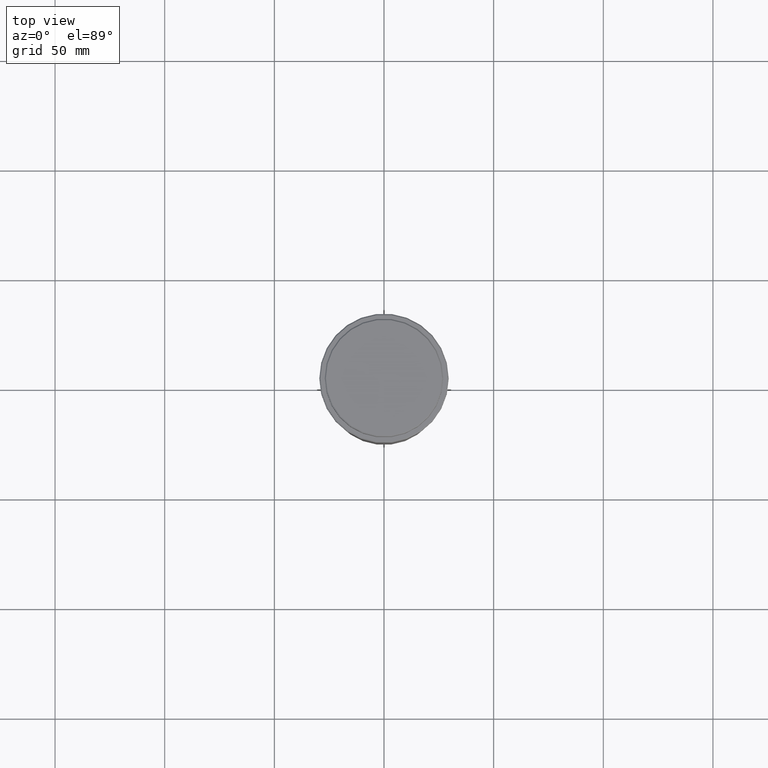
[diagram: clean part render]
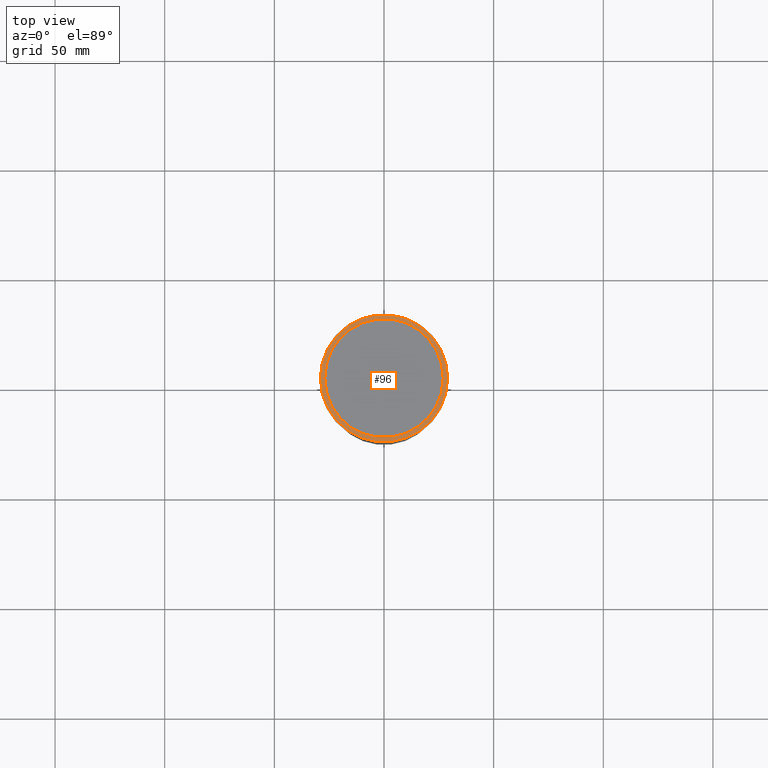
[diagram: same view with one face highlighted and labeled with its STEP entity id]
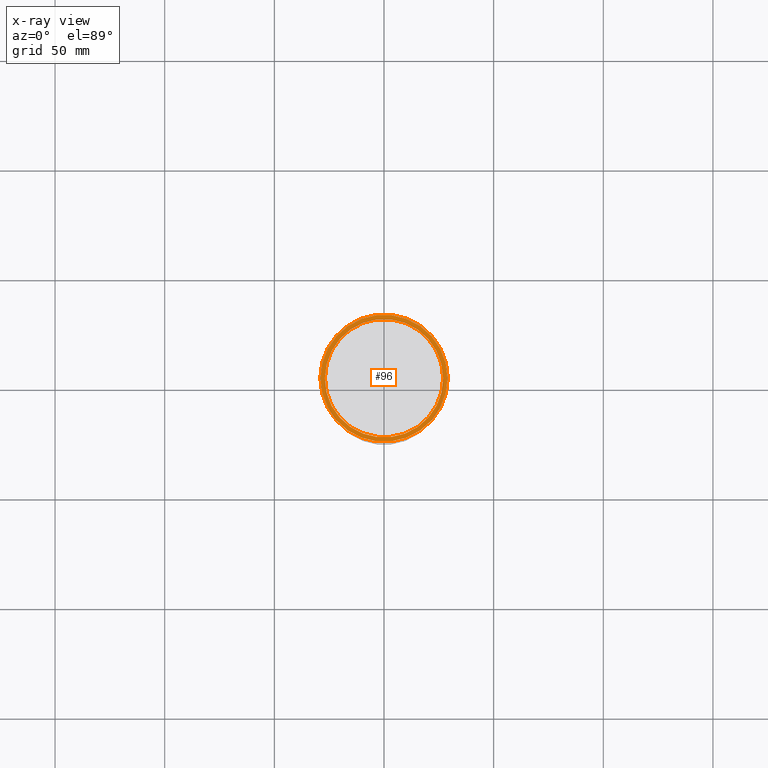
[diagram: x-ray of the same camera — body ghosted, the highlighted face saturated]
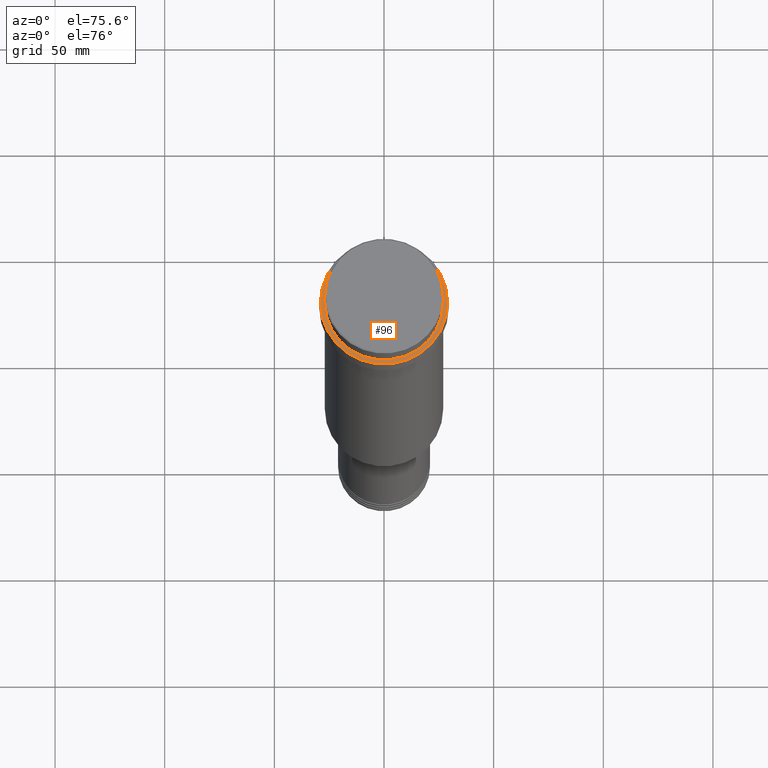
[diagram: same view with one face highlighted and labeled with its STEP entity id]
A machine part, top view. The second image highlights one B-rep face of the part: STEP entity #96.
The next image is the same camera in x-ray: the body ghosted, the highlighted face saturated — about 0% of this face is hidden behind the body in this view.
A second angle (auxiliary view) of the same face is appended — the face is thin or edge-on in the first view.
In plain terms, the highlighted planar face has unit normal (0, -0, 1).
Its self-contained STEP definition (entity closure, byte-faithful):
#52 = CARTESIAN_POINT ( 'NONE',  ( 0.000000000000000000, 0.000000000000000000, -12.00000000000000355 ) ) ;
#54 = DIRECTION ( 'NONE',  ( 1.000000000000000000, 0.000000000000000000, 0.000000000000000000 ) ) ;
#96 = ADVANCED_FACE ( 'NONE', ( #1147, #1025 ), #721, .T. ) ;
#134 = CARTESIAN_POINT ( 'NONE',  ( -26.99999999999999645, 3.306546357697853339E-15, -12.00000000000000355 ) ) ;
#156 = CIRCLE ( 'NONE', #1161, 28.99999999999991473 ) ;
#167 = CIRCLE ( 'NONE', #319, 26.99999999999999645 ) ;
#176 = DIRECTION ( 'NONE',  ( 0.000000000000000000, 0.000000000000000000, -1.000000000000000000 ) ) ;
#181 = CARTESIAN_POINT ( 'NONE',  ( 0.000000000000000000, 0.000000000000000000, -12.00000000000000355 ) ) ;
#192 = DIRECTION ( 'NONE',  ( 0.000000000000000000, 0.000000000000000000, -1.000000000000000000 ) ) ;
#275 = VERTEX_POINT ( 'NONE', #1168 ) ;
#283 = CARTESIAN_POINT ( 'NONE',  ( -28.99999999999991473, 0.000000000000000000, -12.00000000000000355 ) ) ;
#290 = CIRCLE ( 'NONE', #901, 28.99999999999991473 ) ;
#319 = AXIS2_PLACEMENT_3D ( 'NONE', #52, #176, #609 ) ;
#359 = VERTEX_POINT ( 'NONE', #134 ) ;
#510 = EDGE_CURVE ( 'NONE', #781, #359, #167, .T. ) ;
#585 = CARTESIAN_POINT ( 'NONE',  ( 0.000000000000000000, 0.000000000000000000, -12.00000000000000355 ) ) ;
#609 = DIRECTION ( 'NONE',  ( 1.000000000000000000, 0.000000000000000000, 0.000000000000000000 ) ) ;
#613 = DIRECTION ( 'NONE',  ( 1.000000000000000000, 0.000000000000000000, 0.000000000000000000 ) ) ;
#675 = CARTESIAN_POINT ( 'NONE',  ( 0.000000000000000000, 0.000000000000000000, -12.00000000000000355 ) ) ;
#721 = PLANE ( 'NONE',  #1256 ) ;
#742 = EDGE_LOOP ( 'NONE', ( #874, #990 ) ) ;
#781 = VERTEX_POINT ( 'NONE', #1406 ) ;
#823 = DIRECTION ( 'NONE',  ( 0.000000000000000000, -0.000000000000000000, 1.000000000000000000 ) ) ;
#856 = EDGE_CURVE ( 'NONE', #1228, #275, #156, .T. ) ;
#868 = ORIENTED_EDGE ( 'NONE', *, *, #1237, .T. ) ;
#874 = ORIENTED_EDGE ( 'NONE', *, *, #856, .T. ) ;
#901 = AXIS2_PLACEMENT_3D ( 'NONE', #585, #1008, #920 ) ;
#914 = DIRECTION ( 'NONE',  ( -0.000000000000000000, -0.000000000000000000, 1.000000000000000000 ) ) ;
#920 = DIRECTION ( 'NONE',  ( 1.000000000000000000, 0.000000000000000000, 0.000000000000000000 ) ) ;
#937 = CARTESIAN_POINT ( 'NONE',  ( 0.000000000000000000, 26.49999999999999645, -12.00000000000000355 ) ) ;
#990 = ORIENTED_EDGE ( 'NONE', *, *, #1353, .T. ) ;
#999 = EDGE_LOOP ( 'NONE', ( #1017, #868 ) ) ;
#1008 = DIRECTION ( 'NONE',  ( -0.000000000000000000, -0.000000000000000000, 1.000000000000000000 ) ) ;
#1017 = ORIENTED_EDGE ( 'NONE', *, *, #510, .T. ) ;
#1025 = FACE_BOUND ( 'NONE', #999, .T. ) ;
#1137 = CIRCLE ( 'NONE', #1162, 26.99999999999999645 ) ;
#1147 = FACE_OUTER_BOUND ( 'NONE', #742, .T. ) ;
#1161 = AXIS2_PLACEMENT_3D ( 'NONE', #675, #914, #54 ) ;
#1162 = AXIS2_PLACEMENT_3D ( 'NONE', #181, #192, #613 ) ;
#1168 = CARTESIAN_POINT ( 'NONE',  ( 28.99999999999991473, 3.582091887506003084E-15, -12.00000000000000355 ) ) ;
#1228 = VERTEX_POINT ( 'NONE', #283 ) ;
#1237 = EDGE_CURVE ( 'NONE', #359, #781, #1137, .T. ) ;
#1245 = DIRECTION ( 'NONE',  ( 1.000000000000000000, 0.000000000000000000, 0.000000000000000000 ) ) ;
#1256 = AXIS2_PLACEMENT_3D ( 'NONE', #937, #823, #1245 ) ;
#1353 = EDGE_CURVE ( 'NONE', #275, #1228, #290, .T. ) ;
#1406 = CARTESIAN_POINT ( 'NONE',  ( 26.99999999999999645, 0.000000000000000000, -12.00000000000000355 ) ) ;